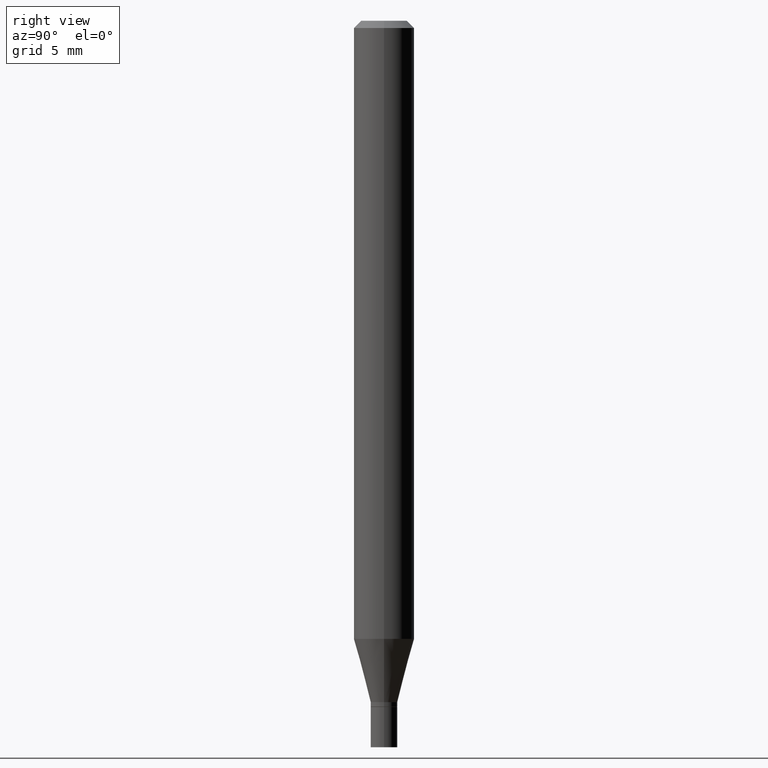
[diagram: clean part render]
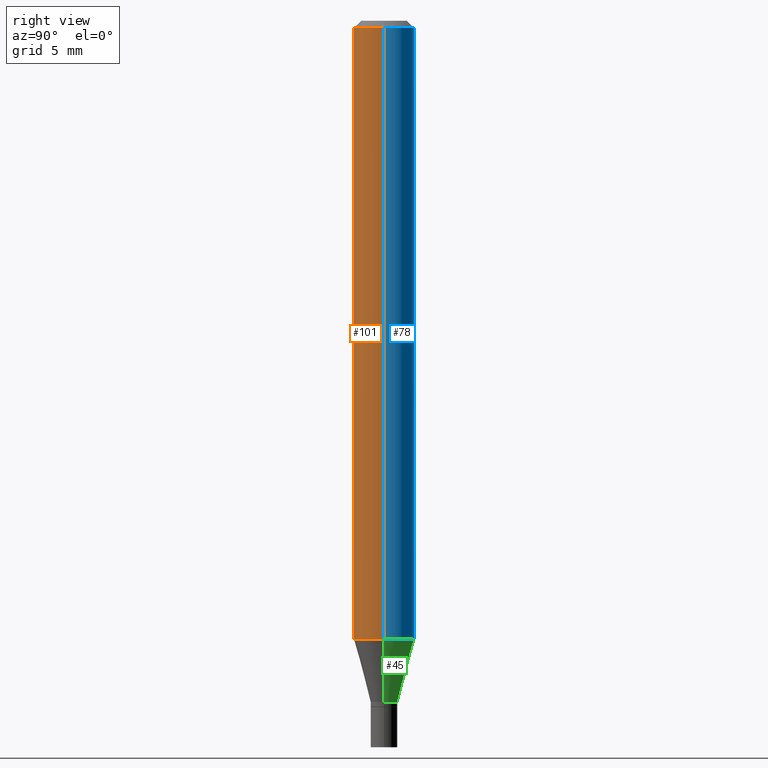
[diagram: same view with three faces highlighted in distinct colors, each labeled with its STEP entity id]
A machine part, right view with three faces highlighted in distinct colors.
Their STEP definitions:

[orange] entity #101 — the highlighted cylindrical surface (edge-blend (fillet) strip) has radius 1.5875 mm, axis along (-0, 0, 1).
#38 = CARTESIAN_POINT ( 'NONE',  ( -0.06250000000000000000, -1.810322271438192615E-15, -0.01499999999999999944 ) ) ;
#48 = CYLINDRICAL_SURFACE ( 'NONE', #323, 0.06250000000000000000 ) ;
#57 = VECTOR ( 'NONE', #296, 39.37007874015748143 ) ;
#61 = EDGE_CURVE ( 'NONE', #108, #80, #419, .T. ) ;
#62 = AXIS2_PLACEMENT_3D ( 'NONE', #129, #279, #421 ) ;
#76 = AXIS2_PLACEMENT_3D ( 'NONE', #149, #320, #215 ) ;
#80 = VERTEX_POINT ( 'NONE', #385 ) ;
#86 = EDGE_CURVE ( 'NONE', #360, #80, #98, .T. ) ;
#98 = CIRCLE ( 'NONE', #62, 0.06250000000000000000 ) ;
#101 = ADVANCED_FACE ( 'NONE', ( #381 ), #48, .T. ) ;
#108 = VERTEX_POINT ( 'NONE', #170 ) ;
#129 = CARTESIAN_POINT ( 'NONE',  ( 3.668203209277705088E-31, -5.237222008264718399E-17, -0.01499999999999999944 ) ) ;
#149 = CARTESIAN_POINT ( 'NONE',  ( 3.121343126147216343E-29, -4.456450742493863778E-15, -1.276378221735089191 ) ) ;
#170 = CARTESIAN_POINT ( 'NONE',  ( 0.06250000000000000000, -4.892885909849253869E-15, -1.276378221735089191 ) ) ;
#177 = VERTEX_POINT ( 'NONE', #452 ) ;
#178 = CARTESIAN_POINT ( 'NONE',  ( -0.06250000000000000000, 4.440892098500626162E-16, -3.074334431409316114E-30 ) ) ;
#184 = LINE ( 'NONE', #178, #57 ) ;
#189 = EDGE_LOOP ( 'NONE', ( #392, #356, #402, #288 ) ) ;
#213 = VECTOR ( 'NONE', #262, 39.37007874015748143 ) ;
#215 = DIRECTION ( 'NONE',  ( 1.000000000000000000, -6.982962677686262766E-15, 0.000000000000000000 ) ) ;
#262 = DIRECTION ( 'NONE',  ( -2.445468806185136877E-29, 3.491481338843145188E-15, 1.000000000000000000 ) ) ;
#268 = DIRECTION ( 'NONE',  ( 1.000000000000000000, -6.982962677686266711E-15, 4.876176775795935793E-29 ) ) ;
#279 = DIRECTION ( 'NONE',  ( -2.445468806185136597E-29, 3.491481338843145583E-15, 1.000000000000000000 ) ) ;
#288 = ORIENTED_EDGE ( 'NONE', *, *, #86, .F. ) ;
#296 = DIRECTION ( 'NONE',  ( -2.445468806185136877E-29, 3.491481338843145188E-15, 1.000000000000000000 ) ) ;
#306 = DIRECTION ( 'NONE',  ( -2.445468806185136597E-29, 3.491481338843145583E-15, 1.000000000000000000 ) ) ;
#317 = CIRCLE ( 'NONE', #76, 0.06250000000000000000 ) ;
#320 = DIRECTION ( 'NONE',  ( -2.445468806185136597E-29, 3.491481338843145583E-15, 1.000000000000000000 ) ) ;
#323 = AXIS2_PLACEMENT_3D ( 'NONE', #348, #306, #268 ) ;
#330 = CARTESIAN_POINT ( 'NONE',  ( 0.06250000000000000000, -4.364351673553916694E-16, 3.047610484872459871E-30 ) ) ;
#348 = CARTESIAN_POINT ( 'NONE',  ( 0.000000000000000000, 0.000000000000000000, 0.000000000000000000 ) ) ;
#356 = ORIENTED_EDGE ( 'NONE', *, *, #362, .T. ) ;
#360 = VERTEX_POINT ( 'NONE', #38 ) ;
#362 = EDGE_CURVE ( 'NONE', #177, #108, #317, .T. ) ;
#381 = FACE_OUTER_BOUND ( 'NONE', #189, .T. ) ;
#385 = CARTESIAN_POINT ( 'NONE',  ( 0.06250000000000000000, -4.888073874380388472E-16, -0.01499999999999999944 ) ) ;
#392 = ORIENTED_EDGE ( 'NONE', *, *, #395, .F. ) ;
#395 = EDGE_CURVE ( 'NONE', #177, #360, #184, .T. ) ;
#402 = ORIENTED_EDGE ( 'NONE', *, *, #61, .T. ) ;
#419 = LINE ( 'NONE', #330, #213 ) ;
#421 = DIRECTION ( 'NONE',  ( 1.000000000000000000, -6.982962677686266711E-15, 0.000000000000000000 ) ) ;
#452 = CARTESIAN_POINT ( 'NONE',  ( -0.06250000000000000000, -4.012361532643800373E-15, -1.276378221735089191 ) ) ;

[blue] entity #78 — the highlighted cylindrical surface (edge-blend (fillet) strip) has radius 1.5875 mm, axis along (-0, 0, 1).
#6 = ORIENTED_EDGE ( 'NONE', *, *, #395, .T. ) ;
#8 = CIRCLE ( 'NONE', #27, 0.06250000000000000000 ) ;
#27 = AXIS2_PLACEMENT_3D ( 'NONE', #418, #277, #90 ) ;
#28 = AXIS2_PLACEMENT_3D ( 'NONE', #375, #451, #130 ) ;
#38 = CARTESIAN_POINT ( 'NONE',  ( -0.06250000000000000000, -1.810322271438192615E-15, -0.01499999999999999944 ) ) ;
#44 = ORIENTED_EDGE ( 'NONE', *, *, #448, .F. ) ;
#57 = VECTOR ( 'NONE', #296, 39.37007874015748143 ) ;
#61 = EDGE_CURVE ( 'NONE', #108, #80, #419, .T. ) ;
#78 = ADVANCED_FACE ( 'NONE', ( #302 ), #229, .T. ) ;
#80 = VERTEX_POINT ( 'NONE', #385 ) ;
#85 = AXIS2_PLACEMENT_3D ( 'NONE', #374, #95, #240 ) ;
#90 = DIRECTION ( 'NONE',  ( 1.000000000000000000, -6.982962677686262766E-15, 0.000000000000000000 ) ) ;
#95 = DIRECTION ( 'NONE',  ( -2.445468806185136597E-29, 3.491481338843145583E-15, 1.000000000000000000 ) ) ;
#105 = EDGE_CURVE ( 'NONE', #108, #177, #8, .T. ) ;
#108 = VERTEX_POINT ( 'NONE', #170 ) ;
#130 = DIRECTION ( 'NONE',  ( 1.000000000000000000, -6.982962677686266711E-15, 0.000000000000000000 ) ) ;
#155 = CIRCLE ( 'NONE', #28, 0.06250000000000000000 ) ;
#170 = CARTESIAN_POINT ( 'NONE',  ( 0.06250000000000000000, -4.892885909849253869E-15, -1.276378221735089191 ) ) ;
#177 = VERTEX_POINT ( 'NONE', #452 ) ;
#178 = CARTESIAN_POINT ( 'NONE',  ( -0.06250000000000000000, 4.440892098500626162E-16, -3.074334431409316114E-30 ) ) ;
#184 = LINE ( 'NONE', #178, #57 ) ;
#213 = VECTOR ( 'NONE', #262, 39.37007874015748143 ) ;
#229 = CYLINDRICAL_SURFACE ( 'NONE', #85, 0.06250000000000000000 ) ;
#240 = DIRECTION ( 'NONE',  ( 1.000000000000000000, -6.982962677686266711E-15, 4.876176775795935793E-29 ) ) ;
#262 = DIRECTION ( 'NONE',  ( -2.445468806185136877E-29, 3.491481338843145188E-15, 1.000000000000000000 ) ) ;
#277 = DIRECTION ( 'NONE',  ( -2.445468806185136597E-29, 3.491481338843145583E-15, 1.000000000000000000 ) ) ;
#296 = DIRECTION ( 'NONE',  ( -2.445468806185136877E-29, 3.491481338843145188E-15, 1.000000000000000000 ) ) ;
#302 = FACE_OUTER_BOUND ( 'NONE', #367, .T. ) ;
#321 = ORIENTED_EDGE ( 'NONE', *, *, #105, .T. ) ;
#330 = CARTESIAN_POINT ( 'NONE',  ( 0.06250000000000000000, -4.364351673553916694E-16, 3.047610484872459871E-30 ) ) ;
#360 = VERTEX_POINT ( 'NONE', #38 ) ;
#367 = EDGE_LOOP ( 'NONE', ( #321, #6, #44, #439 ) ) ;
#374 = CARTESIAN_POINT ( 'NONE',  ( 0.000000000000000000, 0.000000000000000000, 0.000000000000000000 ) ) ;
#375 = CARTESIAN_POINT ( 'NONE',  ( 3.668203209277705088E-31, -5.237222008264718399E-17, -0.01499999999999999944 ) ) ;
#385 = CARTESIAN_POINT ( 'NONE',  ( 0.06250000000000000000, -4.888073874380388472E-16, -0.01499999999999999944 ) ) ;
#395 = EDGE_CURVE ( 'NONE', #177, #360, #184, .T. ) ;
#418 = CARTESIAN_POINT ( 'NONE',  ( 3.121343126147216343E-29, -4.456450742493863778E-15, -1.276378221735089191 ) ) ;
#419 = LINE ( 'NONE', #330, #213 ) ;
#439 = ORIENTED_EDGE ( 'NONE', *, *, #61, .F. ) ;
#448 = EDGE_CURVE ( 'NONE', #80, #360, #155, .T. ) ;
#451 = DIRECTION ( 'NONE',  ( -2.445468806185136597E-29, 3.491481338843145583E-15, 1.000000000000000000 ) ) ;
#452 = CARTESIAN_POINT ( 'NONE',  ( -0.06250000000000000000, -4.012361532643800373E-15, -1.276378221735089191 ) ) ;

[green] entity #45 — the highlighted conical surface has half-angle 15 deg.
#8 = CIRCLE ( 'NONE', #27, 0.06250000000000000000 ) ;
#22 = EDGE_CURVE ( 'NONE', #37, #394, #173, .T. ) ;
#27 = AXIS2_PLACEMENT_3D ( 'NONE', #418, #277, #90 ) ;
#37 = VERTEX_POINT ( 'NONE', #308 ) ;
#45 = ADVANCED_FACE ( 'NONE', ( #156 ), #417, .T. ) ;
#77 = DIRECTION ( 'NONE',  ( -2.445468806185136597E-29, 3.491481338843145583E-15, 1.000000000000000000 ) ) ;
#90 = DIRECTION ( 'NONE',  ( 1.000000000000000000, -6.982962677686262766E-15, 0.000000000000000000 ) ) ;
#105 = EDGE_CURVE ( 'NONE', #108, #177, #8, .T. ) ;
#108 = VERTEX_POINT ( 'NONE', #170 ) ;
#152 = ORIENTED_EDGE ( 'NONE', *, *, #105, .F. ) ;
#156 = FACE_OUTER_BOUND ( 'NONE', #217, .T. ) ;
#166 = DIRECTION ( 'NONE',  ( -0.2588190451025211836, 5.211531920934547886E-15, 0.9659258262890679791 ) ) ;
#170 = CARTESIAN_POINT ( 'NONE',  ( 0.06250000000000000000, -4.892885909849253869E-15, -1.276378221735089191 ) ) ;
#173 = CIRCLE ( 'NONE', #407, 0.02749999999999992034 ) ;
#177 = VERTEX_POINT ( 'NONE', #452 ) ;
#198 = CARTESIAN_POINT ( 'NONE',  ( 3.440774610302487541E-29, -4.912514243752305891E-15, -1.407000000000000028 ) ) ;
#201 = DIRECTION ( 'NONE',  ( 1.000000000000000000, -6.982962677686265133E-15, 0.000000000000000000 ) ) ;
#217 = EDGE_LOOP ( 'NONE', ( #378, #431, #152, #365 ) ) ;
#230 = CARTESIAN_POINT ( 'NONE',  ( -0.02749999999999992034, -4.717114991418278561E-15, -1.407000000000000028 ) ) ;
#233 = VECTOR ( 'NONE', #166, 39.37007874015748854 ) ;
#272 = AXIS2_PLACEMENT_3D ( 'NONE', #299, #443, #201 ) ;
#277 = DIRECTION ( 'NONE',  ( -2.445468806185136597E-29, 3.491481338843145583E-15, 1.000000000000000000 ) ) ;
#299 = CARTESIAN_POINT ( 'NONE',  ( 3.440774610302487541E-29, -4.912514243752305891E-15, -1.407000000000000028 ) ) ;
#308 = CARTESIAN_POINT ( 'NONE',  ( 0.02749999999999992034, -5.104545717388677595E-15, -1.407000000000000028 ) ) ;
#312 = DIRECTION ( 'NONE',  ( 1.000000000000000000, -6.982962677686265133E-15, 0.000000000000000000 ) ) ;
#318 = LINE ( 'NONE', #361, #332 ) ;
#332 = VECTOR ( 'NONE', #436, 39.37007874015748854 ) ;
#342 = LINE ( 'NONE', #230, #233 ) ;
#349 = EDGE_CURVE ( 'NONE', #37, #108, #318, .T. ) ;
#361 = CARTESIAN_POINT ( 'NONE',  ( 0.02749999999999992034, -5.104545717388677595E-15, -1.407000000000000028 ) ) ;
#365 = ORIENTED_EDGE ( 'NONE', *, *, #349, .F. ) ;
#378 = ORIENTED_EDGE ( 'NONE', *, *, #22, .T. ) ;
#394 = VERTEX_POINT ( 'NONE', #399 ) ;
#399 = CARTESIAN_POINT ( 'NONE',  ( -0.02749999999999992034, -4.364738262031039467E-15, -1.407000000000000028 ) ) ;
#407 = AXIS2_PLACEMENT_3D ( 'NONE', #198, #77, #312 ) ;
#417 = CONICAL_SURFACE ( 'NONE', #272, 0.02749999999999992034, 0.2617993877991499074 ) ;
#418 = CARTESIAN_POINT ( 'NONE',  ( 3.121343126147216343E-29, -4.456450742493863778E-15, -1.276378221735089191 ) ) ;
#431 = ORIENTED_EDGE ( 'NONE', *, *, #462, .T. ) ;
#436 = DIRECTION ( 'NONE',  ( 0.2588190451025211836, 1.565188264969622559E-15, 0.9659258262890679791 ) ) ;
#443 = DIRECTION ( 'NONE',  ( -2.445468806185136597E-29, 3.491481338843145583E-15, 1.000000000000000000 ) ) ;
#452 = CARTESIAN_POINT ( 'NONE',  ( -0.06250000000000000000, -4.012361532643800373E-15, -1.276378221735089191 ) ) ;
#462 = EDGE_CURVE ( 'NONE', #394, #177, #342, .T. ) ;